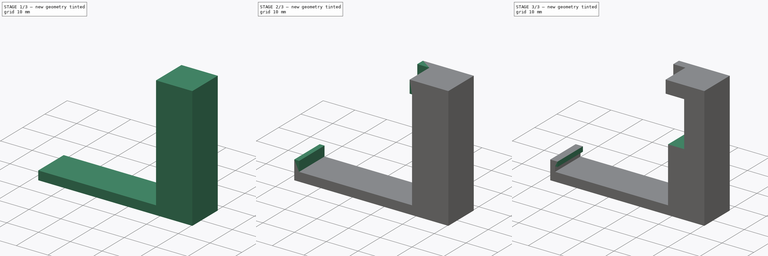
[diagram: build sequence overview — one tinted view per stage of 3, left to right]
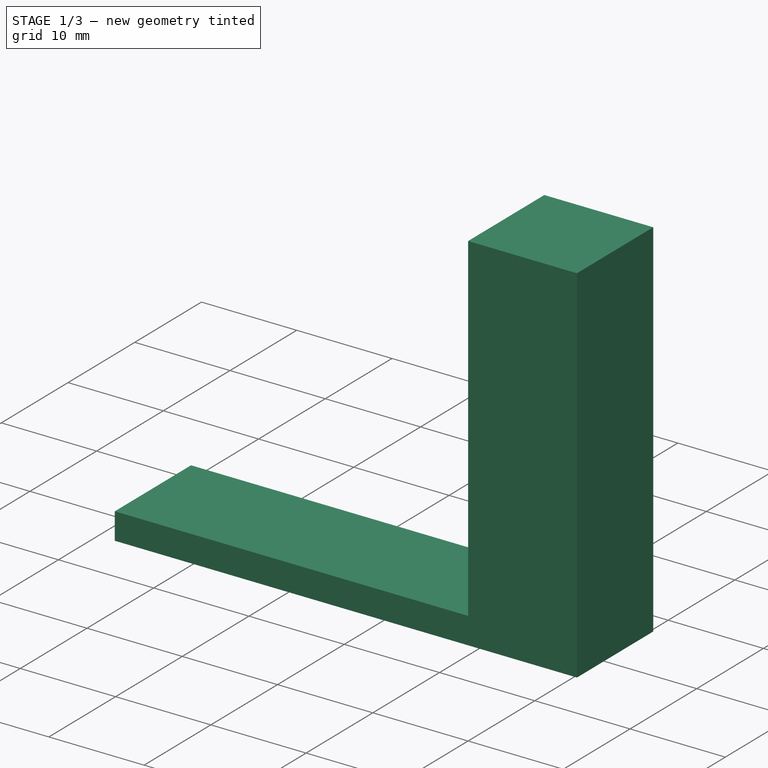
[diagram: stage 1 of 3 — iso view after this stage's code; geometry added in this stage tinted green]
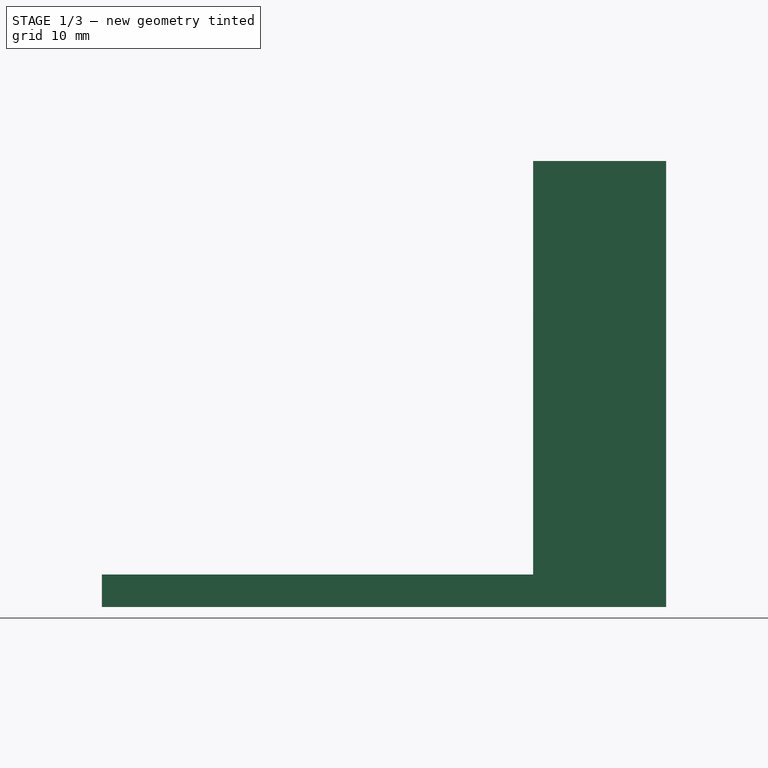
[diagram: stage 1 of 3 — front view after this stage's code; geometry added in this stage tinted green]
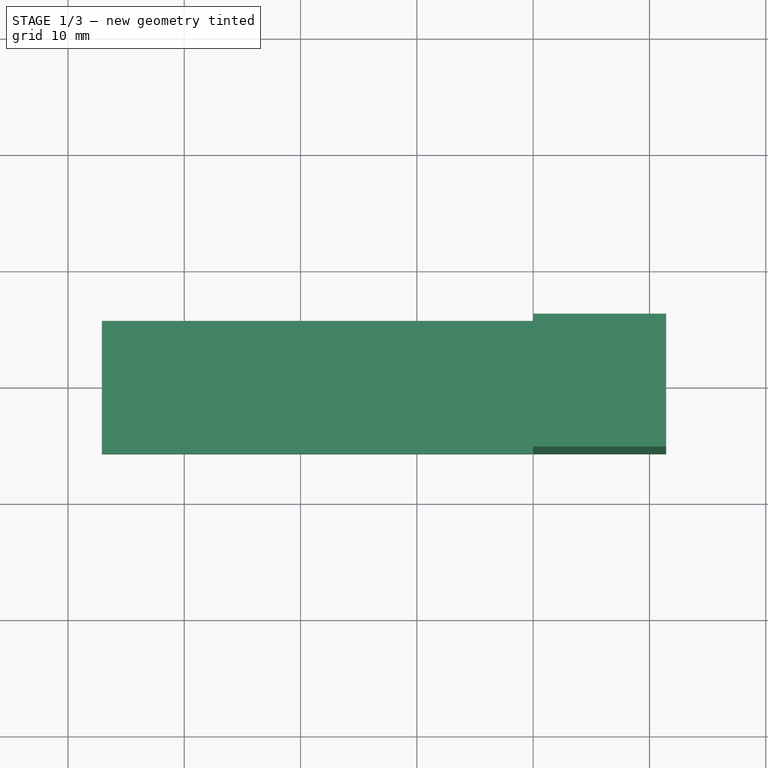
[diagram: stage 1 of 3 — top view after this stage's code; geometry added in this stage tinted green]
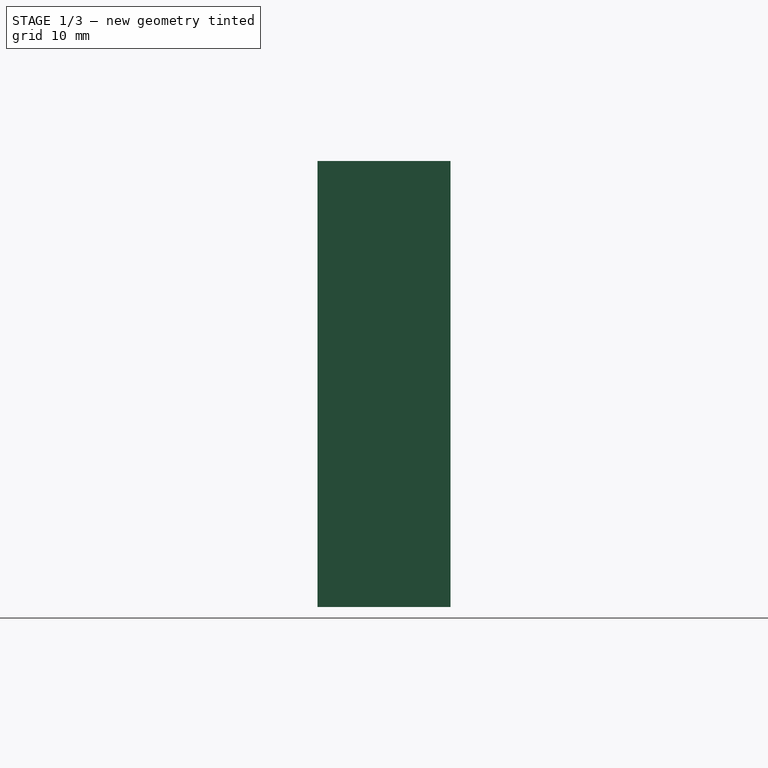
[diagram: stage 1 of 3 — right view after this stage's code; geometry added in this stage tinted green]
FCSTD DOCUMENT  (FreeCAD 1.0R39109 (Git))
Label: jig
License: All rights reserved
LicenseURL: https://en.wikipedia.org/wiki/All_rights_reserved
objects: Sketcher::SketchObject×6, PartDesign::Pad×5, PartDesign::Plane×2, PartDesign::Pocket×1, PartDesign::Body×1, App::Part×1
note: 33 computed .brp shape members not serialized (recipe doc carries the construction recipe); baked Part::Feature solids carry a one-line shape summary decoded from their .brp

FEATURE [Sketcher::SketchObject] Sketch
  ArcFitTolerance = 1e-06
  AttachmentSupport = -> [XY_Plane001]
  FullyConstrained = true
  MakeInternals = false
  MapMode = 5
  sketch-geometry (7):
    g0: LineSegment StartX=-37.084 StartY=5.715 StartZ=0 EndX=-37.084 EndY=-5.715 EndZ=0
    g1: LineSegment StartX=-37.084 StartY=-5.715 StartZ=0 EndX=0 EndY=-5.715 EndZ=0
    g2: LineSegment [constr] StartX=0 StartY=-5.715 StartZ=0 EndX=0 EndY=5.715 EndZ=0
    g3: LineSegment StartX=0 StartY=5.715 StartZ=0 EndX=-37.084 EndY=5.715 EndZ=0
    g4: LineSegment StartX=0 StartY=5.715 StartZ=0 EndX=11.43 EndY=5.715 EndZ=0
    g5: LineSegment StartX=11.43 StartY=5.715 StartZ=0 EndX=11.43 EndY=-5.715 EndZ=0
    g6: LineSegment StartX=11.43 StartY=-5.715 StartZ=0 EndX=0 EndY=-5.715 EndZ=0
  constraints (19):
    c: Coincident(g0,g1)
    c: Coincident(g1,g2)
    c: Coincident(g2,g3)
    c: Coincident(g3,g0)
    c: Vertical(g0)
    c: Vertical(g2)
    c: Horizontal(g1)
    c: Horizontal(g3)
    c: DistanceY(g2,g2) = 11.43
    c: Symmetric(g1,g2,g-1)
    c: DistanceX(g1,g1) = 37.084
    c: Coincident(g4,g2)
    c: Horizontal(g4)
    c: Coincident(g5,g4)
    c: Vertical(g5)
    c: Coincident(g6,g5)
    c: Coincident(g6,g1)
    c: Horizontal(g6)
    c: DistanceX(g1,g5) = 11.43
FEATURE [PartDesign::Pad] Pad
  Direction = (0,0,1)
  Length = 2.794
  Length2 = 10
  Profile = -> Sketch
  ReferenceAxis = -> Sketch [N_Axis]
  Refine = true
  Reversed = true
  Suppressed = false
  Type = 0
FEATURE [Sketcher::SketchObject] Sketch001
  ArcFitTolerance = 1e-06
  AttachmentSupport = -> [XY_Plane001]
  ExternalGeometry = -> [Pad]
  FullyConstrained = true
  MakeInternals = false
  MapMode = 5
  sketch-geometry (4):
    g0: LineSegment StartX=11.43 StartY=5.715 StartZ=0 EndX=0 EndY=5.715 EndZ=0
    g1: LineSegment StartX=0 StartY=5.715 StartZ=0 EndX=0 EndY=-5.715 EndZ=0
    g2: LineSegment StartX=0 StartY=-5.715 StartZ=0 EndX=11.43 EndY=-5.715 EndZ=0
    g3: LineSegment StartX=11.43 StartY=-5.715 StartZ=0 EndX=11.43 EndY=5.715 EndZ=0
  constraints (10):
    c: Coincident(g0,g1)
    c: Coincident(g1,g2)
    c: Coincident(g2,g3)
    c: Coincident(g3,g0)
    c: Horizontal(g0)
    c: Horizontal(g2)
    c: Vertical(g1)
    c: Coincident(g0,g-3)
    c: Coincident(g-3,g2)
    c: PointOnObject(g-1,g1)
FEATURE [PartDesign::Pad] Pad001
  BaseFeature = -> Pad
  Direction = (0,0,1)
  Length = 35.56
  Length2 = 10
  Profile = -> Sketch001
  ReferenceAxis = -> Sketch001 [N_Axis]
  Refine = true
  Suppressed = false
  Type = 0
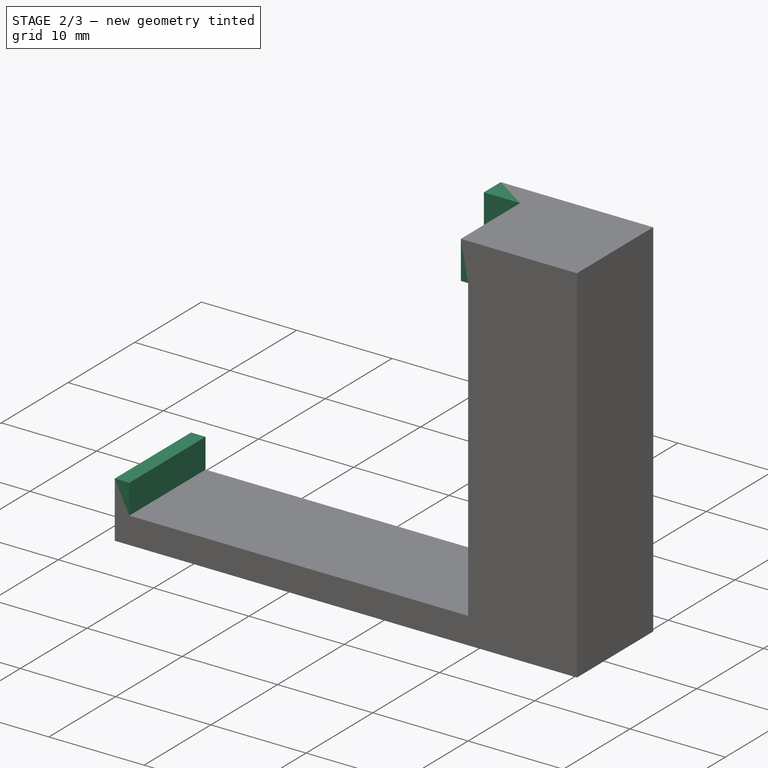
[diagram: stage 2 of 3 — iso view after this stage's code; geometry added in this stage tinted green]
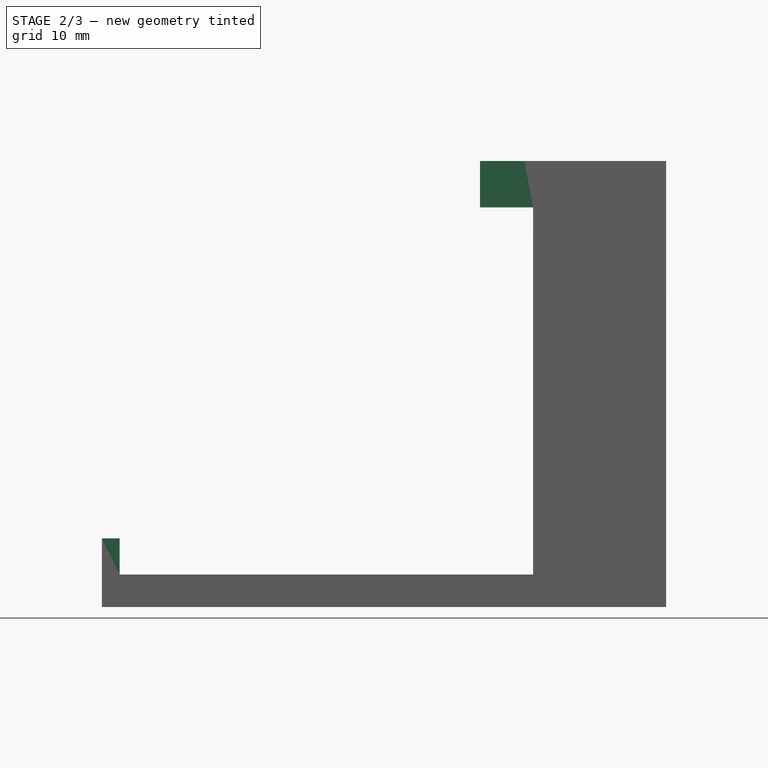
[diagram: stage 2 of 3 — front view after this stage's code; geometry added in this stage tinted green]
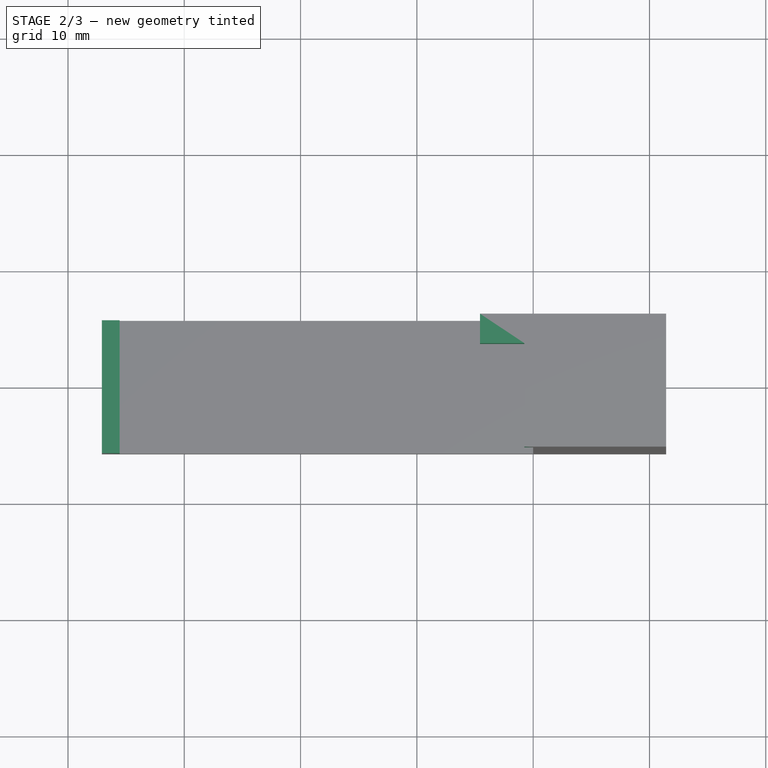
[diagram: stage 2 of 3 — top view after this stage's code; geometry added in this stage tinted green]
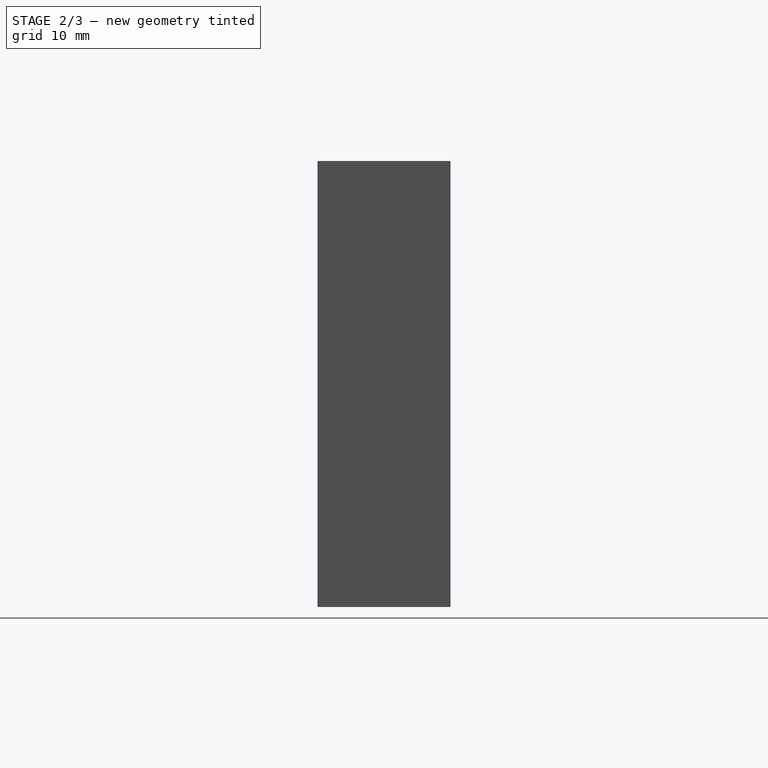
[diagram: stage 2 of 3 — right view after this stage's code; geometry added in this stage tinted green]
FEATURE [PartDesign::Plane] DatumPlane  label="POGO top"
  AttachmentOffset = pos=(0,0,31.5722) rot=(0,0,1;0rad)
  AttachmentSupport = -> [Pad001]
  Length = 73.2271
  MapMode = 5
  Placement = pos=(0,0,31.5722) rot=(0,0,1;0rad)
  ResizeMode = 0
  Width = 61.1431
FEATURE [Sketcher::SketchObject] Sketch002
  ArcFitTolerance = 1e-06
  AttachmentSupport = -> [DatumPlane]
  ExternalGeometry = -> [Pad001]
  FullyConstrained = true
  MakeInternals = false
  MapMode = 5
  Placement = pos=(0,0,31.5722) rot=(0,0,1;0rad)
  sketch-geometry (6):
    g0: LineSegment StartX=11.43 StartY=-5.715 StartZ=0 EndX=11.43 EndY=5.715 EndZ=0
    g1: LineSegment StartX=11.43 StartY=5.715 StartZ=0 EndX=-4.572 EndY=5.715 EndZ=0
    g2: LineSegment StartX=-4.572 StartY=5.715 StartZ=0 EndX=-4.572 EndY=3.175 EndZ=0
    g3: LineSegment StartX=-4.572 StartY=3.175 StartZ=0 EndX=-0.762 EndY=3.175 EndZ=0
    g4: LineSegment StartX=-0.762 StartY=3.175 StartZ=0 EndX=-0.762 EndY=-5.715 EndZ=0
    g5: LineSegment StartX=-0.762 StartY=-5.715 StartZ=0 EndX=11.43 EndY=-5.715 EndZ=0
  constraints (16):
    c: Coincident(g0,g-3)
    c: Coincident(g1,g0)
    c: Coincident(g2,g1)
    c: Coincident(g3,g2)
    c: Coincident(g4,g3)
    c: Vertical(g4)
    c: Coincident(g5,g0)
    c: Horizontal(g5)
    c: Horizontal(g3)
    c: DistanceY(g2,g2) = 2.54
    c: DistanceX(g3,g3) = 3.81
    c: Coincident(g4,g5)
    c: Coincident(g-3,g0)
    c: Vertical(g2)
    c: Horizontal(g1)
    c: DistanceX(g1,g-4) = 4.572
FEATURE [PartDesign::Pad] Pad002
  BaseFeature = -> Pad001
  Direction = (0,0,1)
  Length = 10
  Length2 = 10
  Profile = -> Sketch002
  ReferenceAxis = -> Sketch002 [N_Axis]
  Refine = true
  Suppressed = false
  Type = 3
  UpToFace = -> Pad001 [Face5]
FEATURE [Sketcher::SketchObject] Sketch003
  ArcFitTolerance = 1e-06
  AttachmentSupport = -> [XY_Plane001]
  ExternalGeometry = -> [Pad002]
  FullyConstrained = true
  MakeInternals = false
  MapMode = 5
  sketch-geometry (4):
    g0: LineSegment StartX=-37.084 StartY=5.715 StartZ=0 EndX=-37.084 EndY=-5.715 EndZ=0
    g1: LineSegment StartX=-37.084 StartY=-5.715 StartZ=0 EndX=-35.56 EndY=-5.715 EndZ=0
    g2: LineSegment StartX=-35.56 StartY=-5.715 StartZ=0 EndX=-35.56 EndY=5.715 EndZ=0
    g3: LineSegment StartX=-35.56 StartY=5.715 StartZ=0 EndX=-37.084 EndY=5.715 EndZ=0
  constraints (10):
    c: Coincident(g0,g1)
    c: Coincident(g1,g2)
    c: Coincident(g2,g3)
    c: Coincident(g3,g0)
    c: Vertical(g2)
    c: Horizontal(g1)
    c: Horizontal(g3)
    c: Coincident(g0,g-3)
    c: Coincident(g0,g-3)
    c: DistanceX(g1,g1) = 1.524
FEATURE [PartDesign::Plane] DatumPlane001  label="PCB top"
  AttachmentOffset = pos=(0,0,1.5875) rot=(0,0,1;0rad)
  AttachmentSupport = -> [Pad002]
  Length = 73.2271
  MapMode = 5
  Placement = pos=(0,0,1.5875) rot=(0,0,1;0rad)
  ResizeMode = 0
  Width = 61.1431
FEATURE [PartDesign::Pad] Pad003
  BaseFeature = -> Pad002
  Direction = (0,0,1)
  Length = 3.048
  Length2 = 10
  Offset = 1.524
  Profile = -> Sketch003
  ReferenceAxis = -> Sketch003 [N_Axis]
  Refine = true
  Suppressed = false
  Type = 3
  UpToFace = -> DatumPlane001
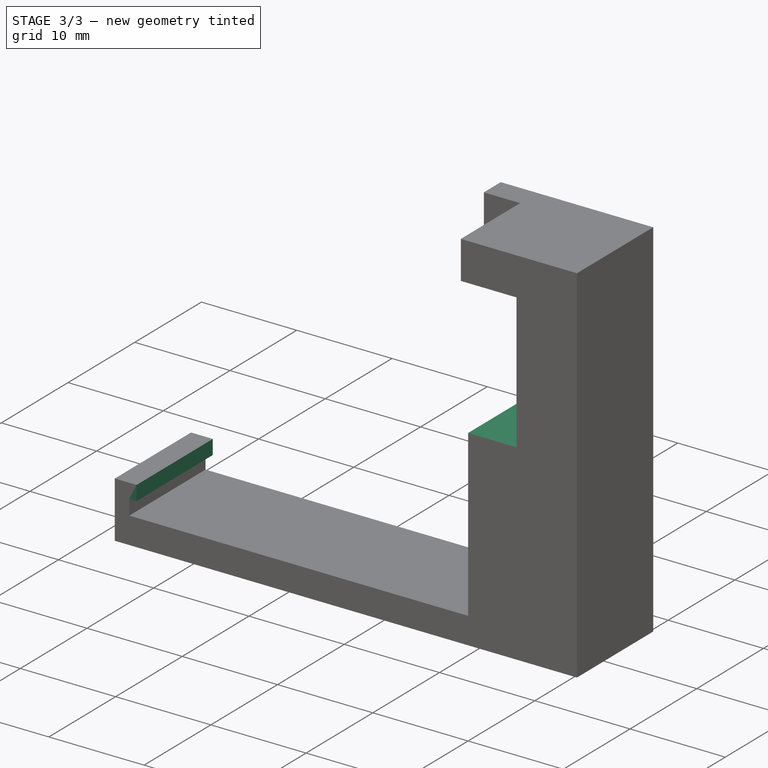
[diagram: stage 3 of 3 — iso view after this stage's code; geometry added in this stage tinted green]
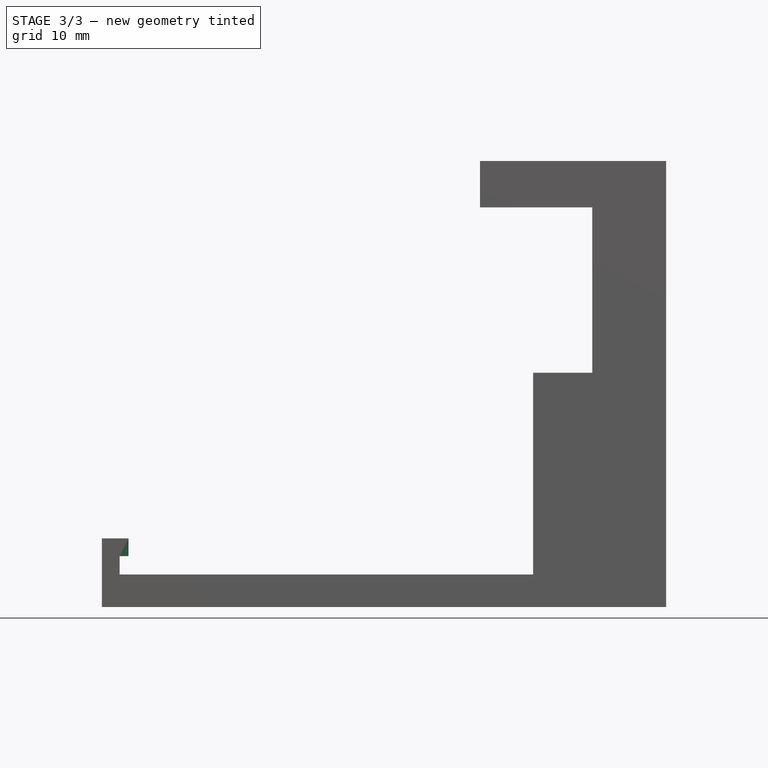
[diagram: stage 3 of 3 — front view after this stage's code; geometry added in this stage tinted green]
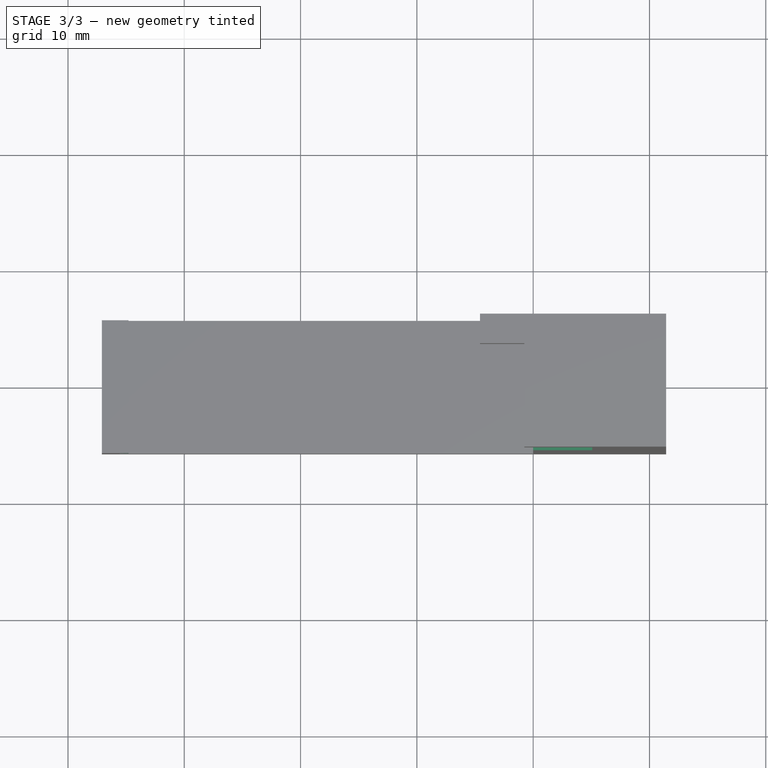
[diagram: stage 3 of 3 — top view after this stage's code; geometry added in this stage tinted green]
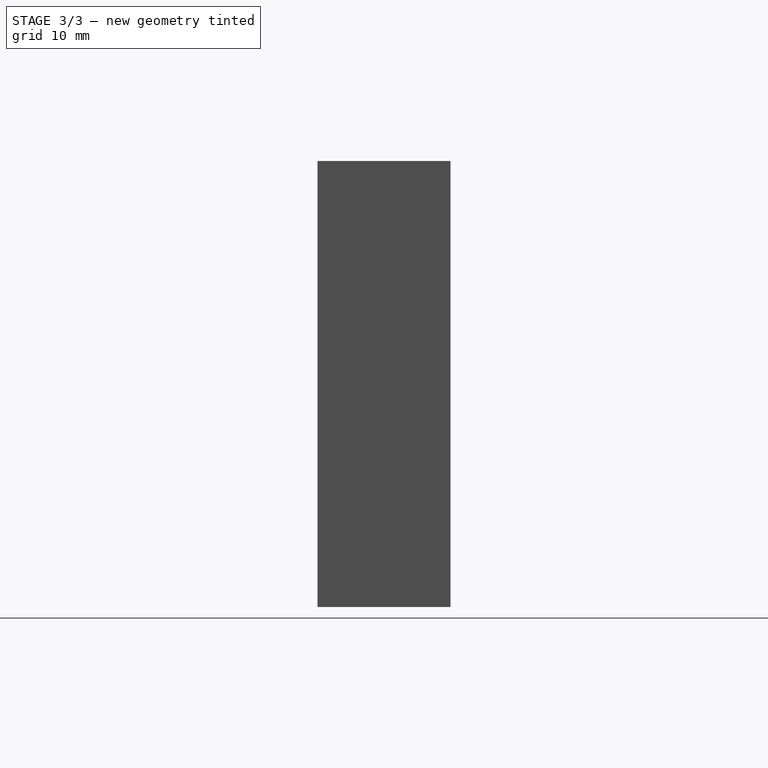
[diagram: stage 3 of 3 — right view after this stage's code; geometry added in this stage tinted green]
FEATURE [Sketcher::SketchObject] Sketch004
  ArcFitTolerance = 1e-06
  AttachmentSupport = -> [DatumPlane001]
  ExternalGeometry = -> [Pad003]
  FullyConstrained = true
  MakeInternals = false
  MapMode = 5
  Placement = pos=(0,0,1.5875) rot=(0,0,1;0rad)
  sketch-geometry (4):
    g0: LineSegment StartX=-37.084 StartY=5.715 StartZ=0 EndX=-37.084 EndY=-5.715 EndZ=0
    g1: LineSegment StartX=-37.084 StartY=-5.715 StartZ=0 EndX=-34.798 EndY=-5.715 EndZ=0
    g2: LineSegment StartX=-34.798 StartY=-5.715 StartZ=0 EndX=-34.798 EndY=5.715 EndZ=0
    g3: LineSegment StartX=-34.798 StartY=5.715 StartZ=0 EndX=-37.084 EndY=5.715 EndZ=0
  constraints (10):
    c: Coincident(g0,g1)
    c: Coincident(g1,g2)
    c: Coincident(g2,g3)
    c: Coincident(g3,g0)
    c: Vertical(g2)
    c: Horizontal(g1)
    c: Horizontal(g3)
    c: Coincident(g0,g-3)
    c: Coincident(g0,g-4)
    c: DistanceX(g-3,g2) = 0.762
FEATURE [PartDesign::Pad] Pad004
  BaseFeature = -> Pad003
  Direction = (0,0,1)
  Length = 10
  Length2 = 10
  Profile = -> Sketch004
  ReferenceAxis = -> Sketch004 [N_Axis]
  Refine = true
  Suppressed = false
  Type = 3
  UpToFace = -> Pad003 [Face10]
FEATURE [Sketcher::SketchObject] Sketch005
  ArcFitTolerance = 1e-06
  AttachmentSupport = -> [Pad004]
  ExternalGeometry = -> [Pad004]
  FullyConstrained = true
  MakeInternals = false
  MapMode = 5
  Placement = pos=(0,-5.715,0) rot=(1,0,0;1.5708rad)
  sketch-geometry (4):
    g0: LineSegment StartX=0 StartY=31.5722 StartZ=0 EndX=0 EndY=17.3482 EndZ=0
    g1: LineSegment StartX=0 StartY=17.3482 StartZ=0 EndX=5.08 EndY=17.3482 EndZ=0
    g2: LineSegment StartX=5.08 StartY=17.3482 StartZ=0 EndX=5.08 EndY=31.5722 EndZ=0
    g3: LineSegment StartX=5.08 StartY=31.5722 StartZ=0 EndX=0 EndY=31.5722 EndZ=0
  constraints (11):
    c: Coincident(g0,g1)
    c: Coincident(g1,g2)
    c: Coincident(g2,g3)
    c: Coincident(g3,g0)
    c: Vertical(g0)
    c: Vertical(g2)
    c: Horizontal(g1)
    c: Horizontal(g3)
    c: Coincident(g0,g-3)
    c: DistanceY(g2,g2) = 14.224
    c: DistanceX(g1,g1) = 5.08
FEATURE [PartDesign::Pocket] Pocket
  BaseFeature = -> Pad004
  Direction = (0,1,-2e-16)
  Length = 5
  Length2 = 5
  Profile = -> Sketch005
  ReferenceAxis = -> Sketch005 [N_Axis]
  Refine = true
  Suppressed = false
  Type = 1
FEATURE [PartDesign::Body] Body
  AllowCompound = false
  Group = -> [Sketch,Pad,Sketch001,Pad001,DatumPlane,Sketch002,Pad002,Sketch003,Pad003,DatumPlane001,Sketch004,Pad004,Sketch005,Pocket]
  Origin = -> Origin001
  Placement = pos=(0,0,0) rot=(-1,0,0;1.5708rad)
  Tip = -> Pocket
FEATURE [App::Part] Part
  Group = -> [Body]
  Origin = -> Origin
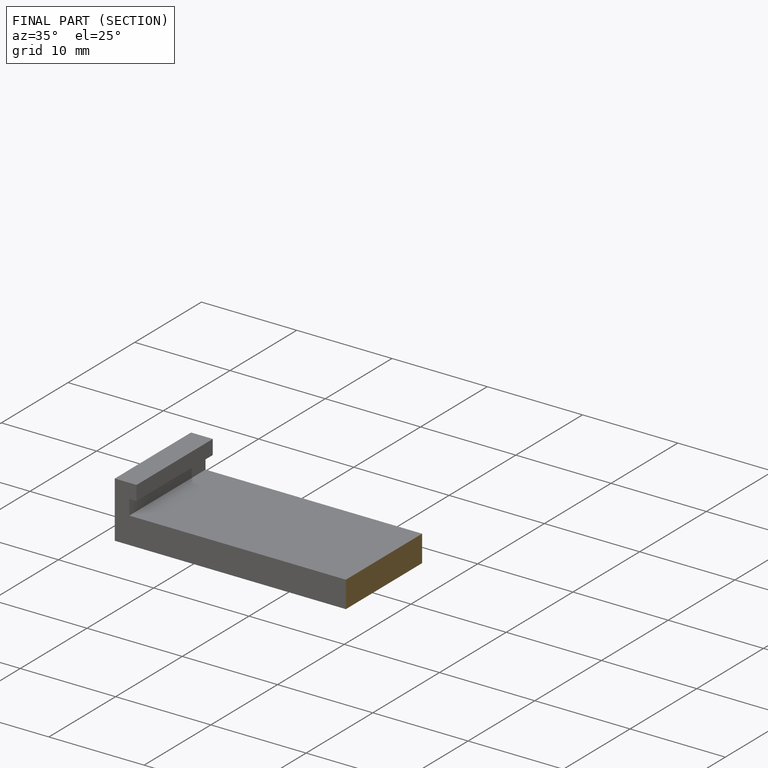
[diagram: finished part — half-section view (interior)]
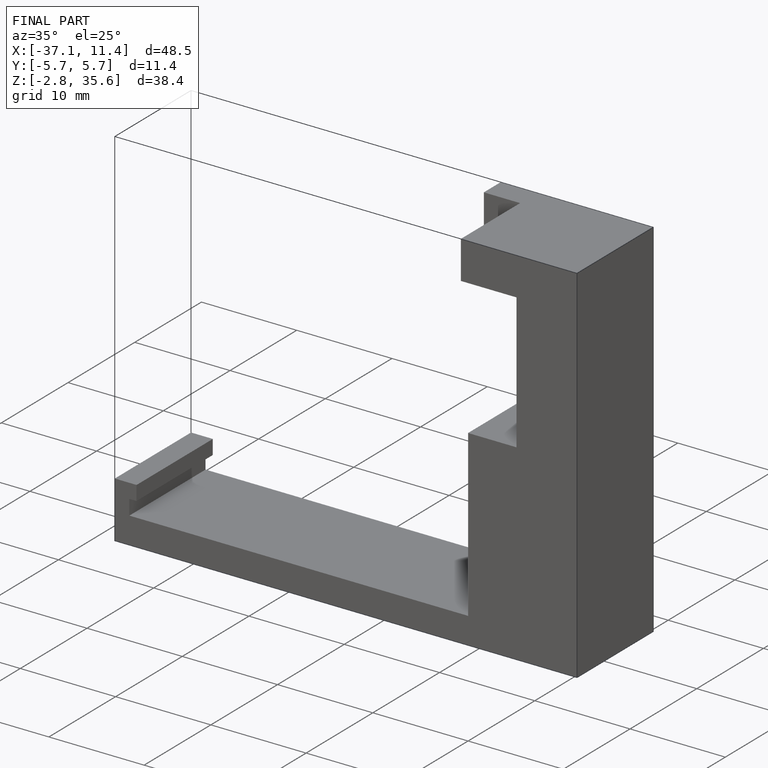
[diagram: finished part — iso view with bounding-box wireframe]
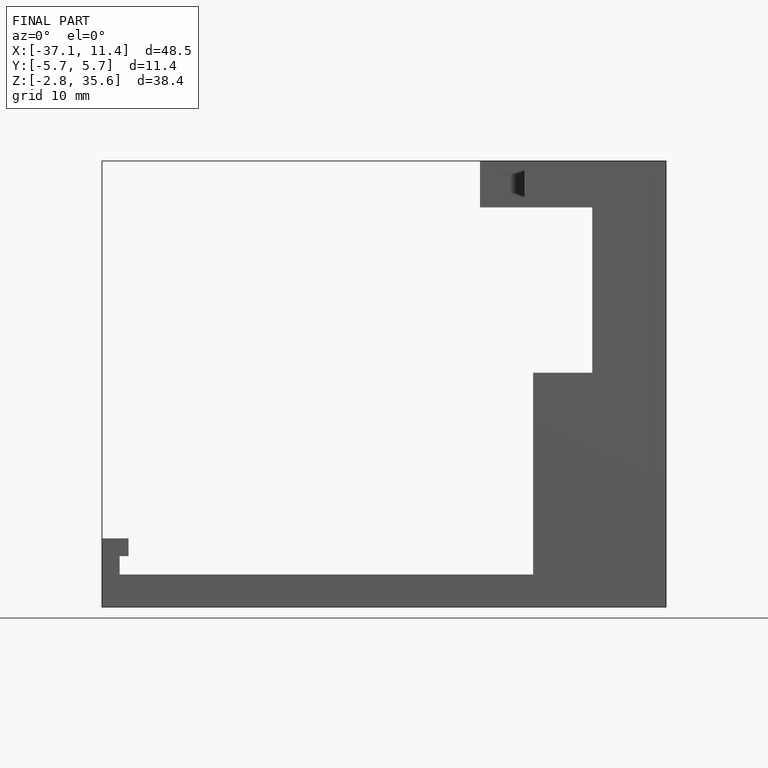
[diagram: finished part — front view with bounding-box wireframe]
